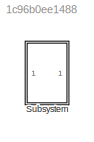
MODEL slx_1c96b0ee1488
KIND model
CONFIG AbsTol = auto
CONFIG EnableMultiTasking = off
CONFIG FixedStep = auto
CONFIG MaxStep = 1/32
CONFIG MinStep = auto
CONFIG RelTol = 1e-3
CONFIG SampleTimeConstraint = Unconstrained
CONFIG SolverName = ode45
CONFIG StartTime = 0.0
CONFIG StopTime = 50.0
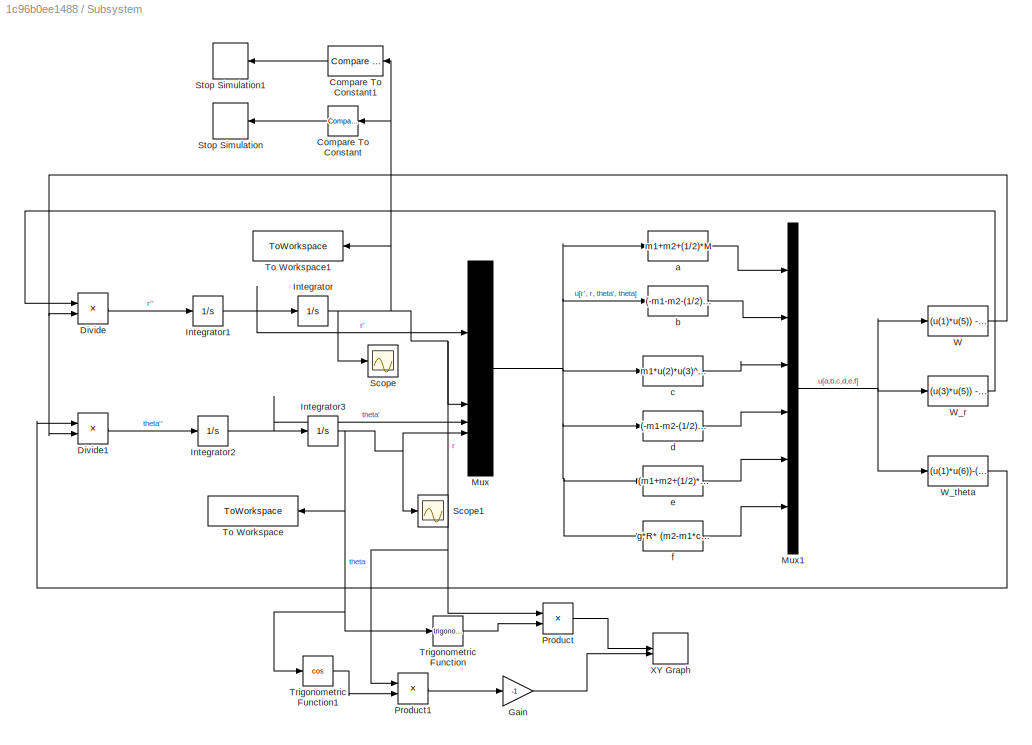
BLOCK [SubSystem] Subsystem
BLOCK [Reference] Subsystem/Compare To Constant  REF=simulink/Logic and Bit
Operations/Compare
To Constant
  NameLocation = top
  SourceBlock = simulink/Logic and Bit\nOperations/Compare\nTo Constant
  SourceType = Compare To Constant
BLOCK [Reference] Subsystem/Compare To Constant1  REF=simulink/Logic and Bit
Operations/Compare
To Constant
  NameLocation = top
  SourceBlock = simulink/Logic and Bit\nOperations/Compare\nTo Constant
  SourceType = Compare To Constant
BLOCK [Product] Subsystem/Divide
  Inputs = */
BLOCK [Product] Subsystem/Divide1
  Inputs = */
BLOCK [Gain] Subsystem/Gain
  Gain = -1
BLOCK [Integrator] Subsystem/Integrator
  InitialCondition = r0
BLOCK [Integrator] Subsystem/Integrator1
BLOCK [Integrator] Subsystem/Integrator2
BLOCK [Integrator] Subsystem/Integrator3
  InitialCondition = (theta0*pi)/180
BLOCK [Mux] Subsystem/Mux
  DisplayOption = bar
BLOCK [Mux] Subsystem/Mux1
  DisplayOption = bar
  Inputs = 6
BLOCK [Product] Subsystem/Product
BLOCK [Product] Subsystem/Product1
BLOCK [Scope] Subsystem/Scope
  Floating = off
  NumInputPorts = 1
  ScopeSpecificationString = Simulink.scopes.TimeScopeBlockCfg('CurrentConfiguration', extmgr.ConfigurationSet(extmgr.Configuration('Core','General UI',true),extmgr.Configuration('Core','Source UI',true),extmgr.Configuration('Sources','WiredSimulink',true),extmgr.Configuration('Visuals','Time Domain',true,'SerializedDisplays',{struct('MinYLimReal','1.71147','MaxYLimReal','4.25428','YLabelReal','','MinYLimMag','1.71147','MaxYL...<+1438ch>
BLOCK [Scope] Subsystem/Scope1
  Floating = off
  NumInputPorts = 1
  ScopeSpecificationString = Simulink.scopes.TimeScopeBlockCfg('CurrentConfiguration', extmgr.ConfigurationSet(extmgr.Configuration('Core','General UI',true),extmgr.Configuration('Core','Source UI',true),extmgr.Configuration('Sources','WiredSimulink',true,'DataLoggingVariableName','ScopeData1'),extmgr.Configuration('Visuals','Time Domain',true,'SerializedDisplays',{struct('MinYLimReal','-0.75885','MaxYLimReal','0.95698','YLab...<+1481ch>
BLOCK [Stop] Subsystem/Stop Simulation
  NameLocation = top
BLOCK [Stop] Subsystem/Stop Simulation1
  NameLocation = top
BLOCK [ToWorkspace] Subsystem/To Workspace
  FixptAsFi = on
  MaxDataPoints = inf
  NameLocation = top
  SampleTime = -1
  SaveFormat = Timeseries
  VariableName = theta
BLOCK [ToWorkspace] Subsystem/To Workspace1
  FixptAsFi = on
  MaxDataPoints = inf
  NameLocation = top
  SampleTime = -1
  SaveFormat = Timeseries
  VariableName = r
BLOCK [Trigonometry] Subsystem/Trigonometric Function
BLOCK [Trigonometry] Subsystem/Trigonometric Function1
  Operator = cos
BLOCK [Fcn] Subsystem/W
  Expr = (u(1)*u(5)) - (u(2)*u(4))
BLOCK [Fcn] Subsystem/W_r
  Expr = (u(3)*u(5)) - (u(2)*u(6))
BLOCK [Fcn] Subsystem/W_theta
  Expr = (u(1)*u(6))-(u(3)*u(4))
BLOCK [Record] Subsystem/XY Graph
  CompatibilityTag = XY
  FileSettingsInternal = {"entries":[{"content":{"excelSettings":{"content":{},"type":"Streamout.ExcelSettings"}},"type":"Streamout.FileSettingStorage","uuid":""}],"packageUris":["http:\/\/schema.mathworks.com\/mf0\/streamout_blocks\/R2020a"],"version":"1.0"}
  Layout = [1 1]
  SignalsInternal = {"entries":[{"content":{"signals":[{"content":{"blockPath":[],"dimensions":[1],"domain":"","lineColor":"#a2142f","plots":[ 1 ],"port":1,"sid":[""],"signalID":1,"signalName":"Product"},"type":"RecordBlkView.Signal","uuid":""},{"content":{"blockPath":[],"dimensions":[1],"domain":"","lineColor":"#139fff","plots":[ 1 ],"port":2,"sid":[""],"signalID":2,"signalName":"Gain"},"type":"RecordBlkView.Signal"...<+157ch>
  VisualizationBindings = {"xyplotplugin":{"info":[{"series":[{"bindingParametersList":[{"parameter":"X-Axis","signalID":1,"signalName":"Product"},{"parameter":"Y-Axis","signalID":2,"signalName":"Gain"}],"seriesID":0}],"subplotID":1}]}}
BLOCK [Fcn] Subsystem/a
  Expr = m1+m2+(1/2)*M
BLOCK [Fcn] Subsystem/b
  Expr = (-m1-m2-(1/2)*M)*R
BLOCK [Fcn] Subsystem/c
  Expr = m1*u(2)*u(3)^2+g*(m1*cos(u(4))-m2)
BLOCK [Fcn] Subsystem/d
  Expr = (-m1-m2-(1/2)*M)*R
BLOCK [Fcn] Subsystem/e
  Expr = (m1+m2+(1/2)*M)*(R^2)+m1*(u(2)^2)
BLOCK [Fcn] Subsystem/f
  Expr = g*R* (m2-m1*cos(u(4))) - m1*u(2) * (2*u(1) * u(3) + g*sin(u(4)))
LINE Subsystem/Compare To Constant1:1 -> Subsystem/Stop Simulation1:1
LINE Subsystem/Compare To Constant:1 -> Subsystem/Stop Simulation:1
LINE Subsystem/Divide1:1 -> Subsystem/Integrator2:1
LINE Subsystem/Divide:1 -> Subsystem/Integrator1:1
LINE Subsystem/Gain:1 -> Subsystem/XY Graph:2
NET Subsystem/Integrator1:1 -> Subsystem/Integrator:1, Subsystem/Mux:1
NET Subsystem/Integrator2:1 -> Subsystem/Integrator3:1, Subsystem/Mux:3
NET Subsystem/Integrator3:1 -> Subsystem/Mux:4, Subsystem/Scope1:1, Subsystem/To Workspace:1, Subsystem/Trigonometric Function1:1, Subsystem/Trigonometric Function:1
NET Subsystem/Integrator:1 -> Subsystem/Compare To Constant1:1, Subsystem/Compare To Constant:1, Subsystem/Mux:2, Subsystem/Product1:1, Subsystem/Product:1, Subsystem/Scope:1, Subsystem/To Workspace1:1
NET Subsystem/Mux1:1 -> Subsystem/W:1, Subsystem/W_r:1, Subsystem/W_theta:1
NET Subsystem/Mux:1 -> Subsystem/a:1, Subsystem/b:1, Subsystem/c:1, Subsystem/d:1, Subsystem/e:1, Subsystem/f:1
LINE Subsystem/Product1:1 -> Subsystem/Gain:1
LINE Subsystem/Product:1 -> Subsystem/XY Graph:1
LINE Subsystem/Trigonometric Function1:1 -> Subsystem/Product1:2
LINE Subsystem/Trigonometric Function:1 -> Subsystem/Product:2
NET Subsystem/W:1 -> Subsystem/Divide1:2, Subsystem/Divide:2
LINE Subsystem/W_r:1 -> Subsystem/Divide:1
LINE Subsystem/W_theta:1 -> Subsystem/Divide1:1
LINE Subsystem/a:1 -> Subsystem/Mux1:1
LINE Subsystem/b:1 -> Subsystem/Mux1:2
LINE Subsystem/c:1 -> Subsystem/Mux1:3
LINE Subsystem/d:1 -> Subsystem/Mux1:4
LINE Subsystem/e:1 -> Subsystem/Mux1:5
LINE Subsystem/f:1 -> Subsystem/Mux1:6
note: NET lines group one-source signal fan-out (src -> all destinations, sorted); 1:1 wires keep LINE
